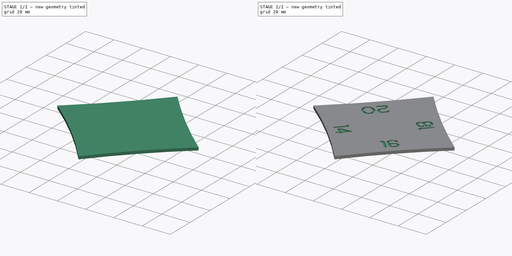
[diagram: build sequence overview — one tinted view per stage of 2, left to right]
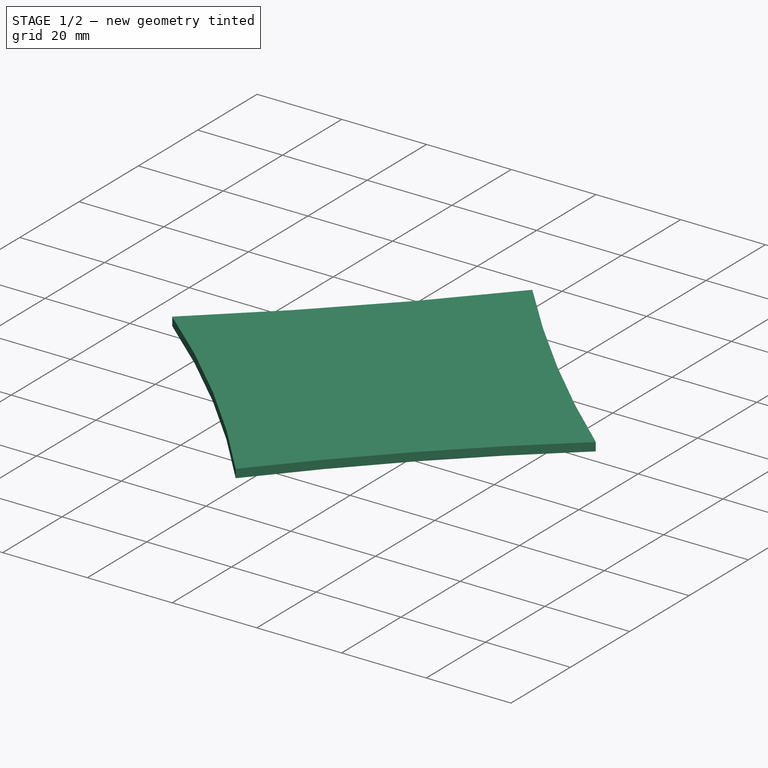
[diagram: stage 1 of 2 — iso view after this stage's code; geometry added in this stage tinted green]
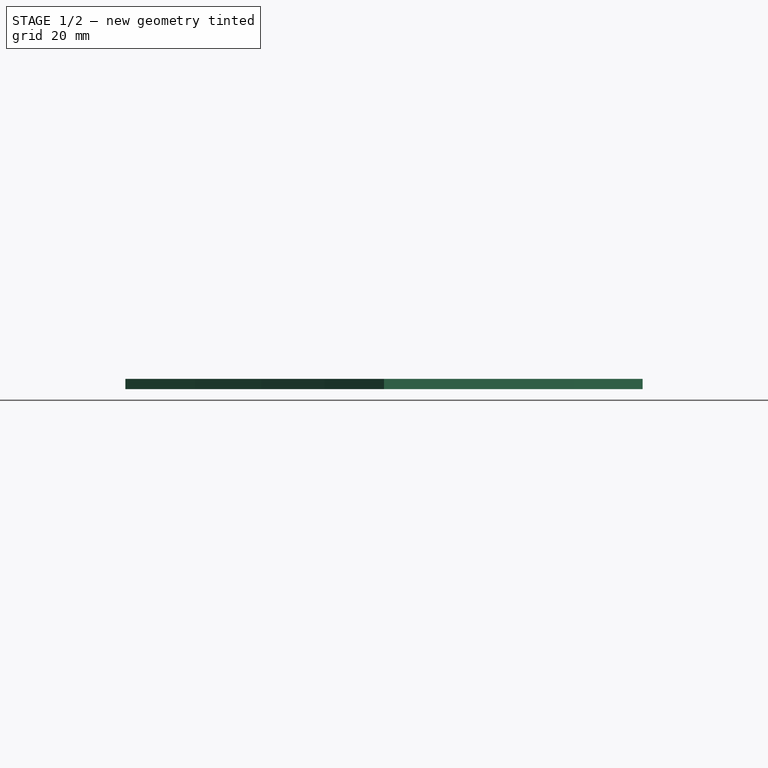
[diagram: stage 1 of 2 — front view after this stage's code; geometry added in this stage tinted green]
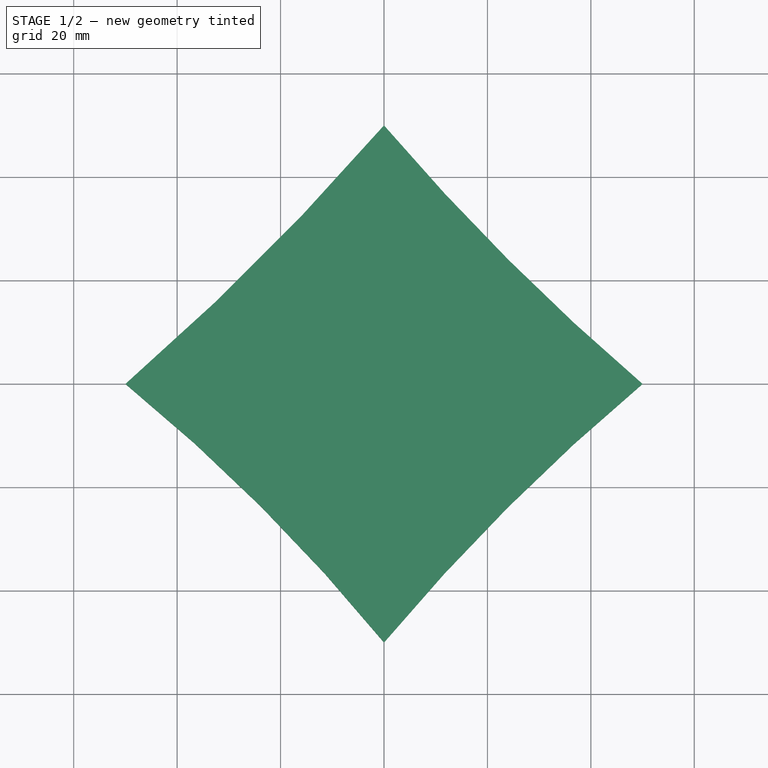
[diagram: stage 1 of 2 — top view after this stage's code; geometry added in this stage tinted green]
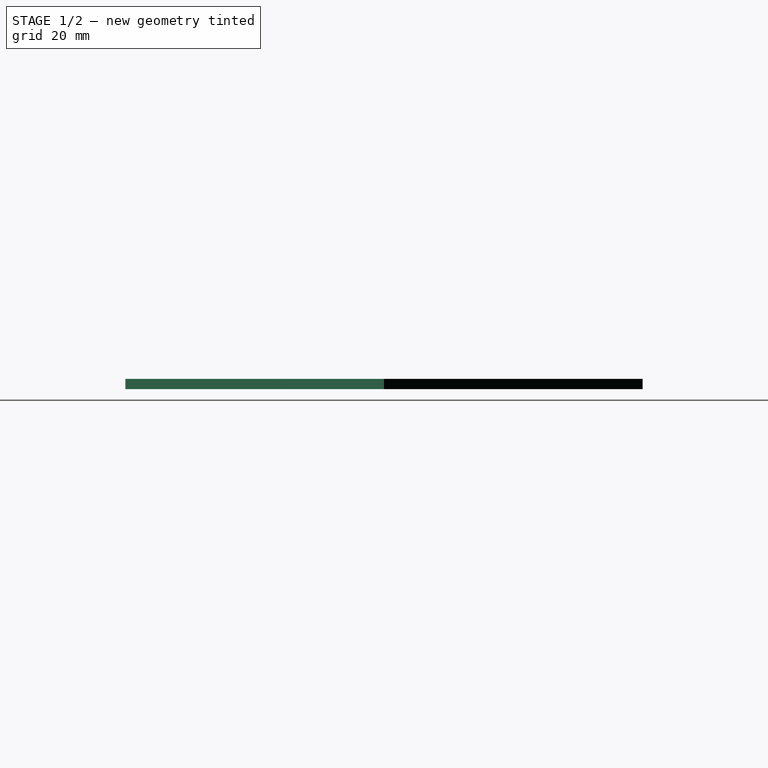
[diagram: stage 1 of 2 — right view after this stage's code; geometry added in this stage tinted green]
FCSTD DOCUMENT  (FreeCAD 2021.911R24301 +3846 (Git))
Label: neck
License: All rights reserved
LicenseURL: http://en.wikipedia.org/wiki/All_rights_reserved
objects: Part::Part2DObjectPython×4, Sketcher::SketchObject×1, PartDesign::Pad×1, PartDesign::Body×1, Part::Feature×1, Part::Cut×1
note: 11 computed .brp shape members not serialized (recipe doc carries the construction recipe); baked Part::Feature solids carry a one-line shape summary decoded from their .brp

FEATURE [Sketcher::SketchObject] Sketch
  FullyConstrained = true
  MapMode = 5
  Support = -> [XY_Plane]
  sketch-geometry (4):
    g0: ArcOfCircle CenterX=-383.339 CenterY=383.339 CenterZ=0 NormalX=0 NormalY=0 NormalZ=1 AngleXU=0 Radius=508 StartAngle=5.42813 EndAngle=5.56744
    g1: ArcOfCircle CenterX=347.321 CenterY=347.321 CenterZ=0 NormalX=0 NormalY=0 NormalZ=1 AngleXU=0 Radius=457.2 StartAngle=3.84958 EndAngle=4.0044
    g2: ArcOfCircle CenterX=311.279 CenterY=-311.279 CenterZ=0 NormalX=0 NormalY=0 NormalZ=1 AngleXU=0 Radius=406.4 StartAngle=2.26909 EndAngle=2.4433
    g3: ArcOfCircle CenterX=-275.201 CenterY=-275.201 CenterZ=0 NormalX=0 NormalY=0 NormalZ=1 AngleXU=0 Radius=355.6 StartAngle=0.685809 EndAngle=0.884987
  constraints (14):
    c: Coincident(g1,g0)
    c: Coincident(g2,g1)
    c: Coincident(g3,g0)
    c: Coincident(g3,g2)
    c: Radius(g3) = 355.6
    c: Radius(g2) = 406.4
    c: Radius(g1) = 457.2
    c: Radius(g0) = 508
    c: Symmetric(g0,g1,g-1)
    c: Symmetric(g2,g0,g-1)
    c: Vertical(g2,g0)
    c: Horizontal(g1,g0)
    c: DistanceX(g0,g1) = 100
    c: DistanceY(g2,g0) = 100
FEATURE [PartDesign::Pad] Pad
  ClaimChildren = false
  Direction = (1,1,1)
  Fit = 0
  FitJoin = 0
  InnerFit = 0
  InnerFitJoin = 0
  InnerTaperAngle = 0
  InnerTaperAngleRev = 0
  Length = 2
  Length2 = 100
  Linearize = true
  NewSolid = false
  Profile = -> Sketch
  Refine = true
  Suppress = false
  Type = 0
  _ProfileBasedVersion = 1
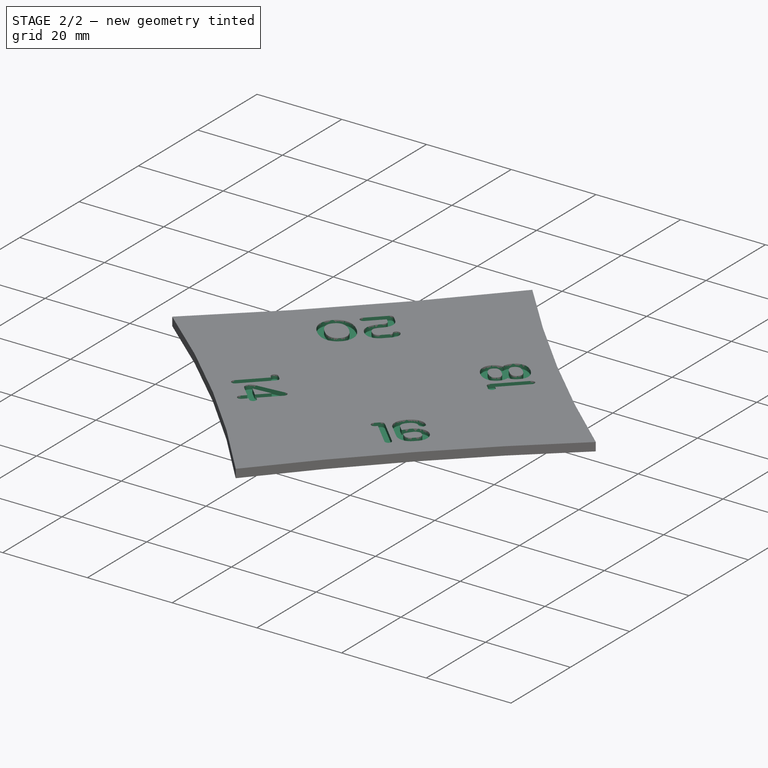
[diagram: stage 2 of 2 — iso view after this stage's code; geometry added in this stage tinted green]
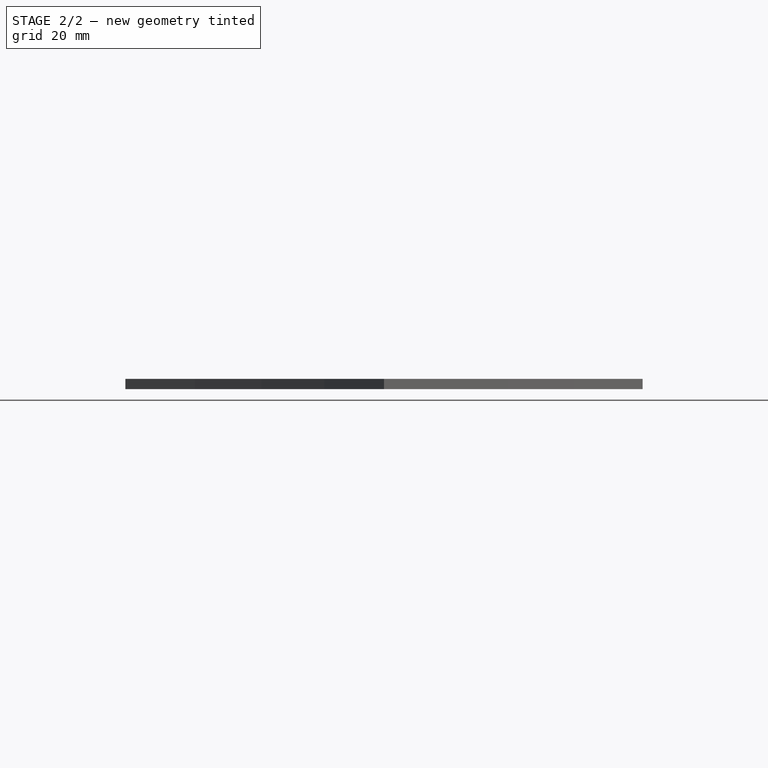
[diagram: stage 2 of 2 — front view after this stage's code; geometry added in this stage tinted green]
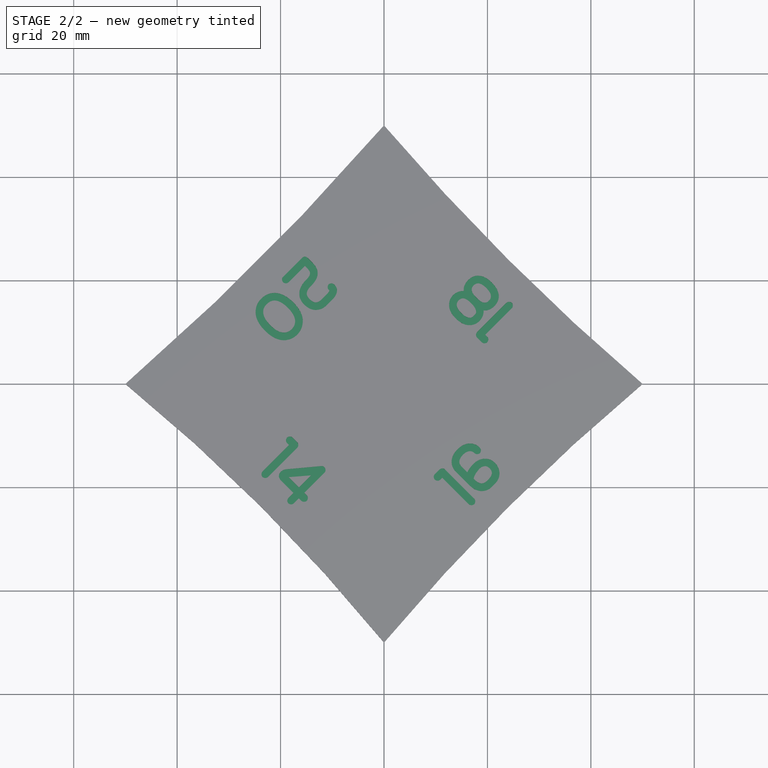
[diagram: stage 2 of 2 — top view after this stage's code; geometry added in this stage tinted green]
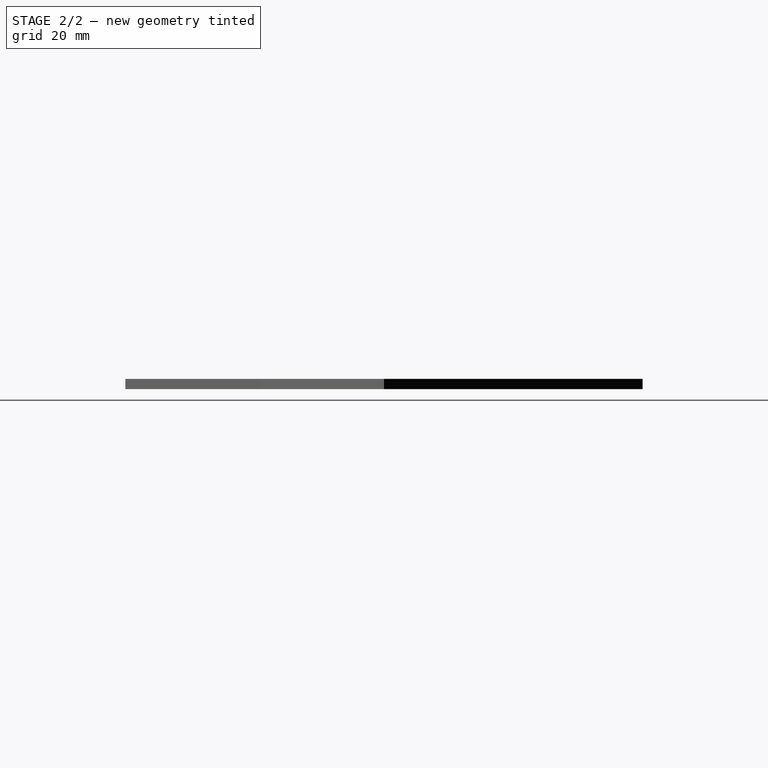
[diagram: stage 2 of 2 — right view after this stage's code; geometry added in this stage tinted green]
FEATURE [PartDesign::Body] Body
  AutoGroupSolids = false
  ExportMode = 0
  Group = -> [Sketch,Pad]
  Origin = -> Origin
  Tip = -> Pad
  _ExportChildren = -> [Pad]
  _GroupVersion = 1
FEATURE [Part::Part2DObjectPython] ShapeString  # Draft 2D object (typed FeaturePython)
  FontFile = <path> neck curve template/Ubuntu-Title.ttf
  Placement = pos=(-24.89,-16.66,2) rot=(0,0,1;-0.785398rad)
  Size = 5
  String = 14
  Tracking = 0
FEATURE [Part::Part2DObjectPython] ShapeString001  # Draft 2D object (typed FeaturePython)
  FontFile = <path> neck curve template/Ubuntu-Title.ttf
  Placement = pos=(16.11,-24.66,2) rot=(0,0,1;0.785398rad)
  Size = 5
  String = 16
  Tracking = 0
FEATURE [Part::Part2DObjectPython] ShapeString002  # Draft 2D object (typed FeaturePython)
  FontFile = <path> neck curve template/Ubuntu-Title.ttf
  Placement = pos=(26.11,14.34,2) rot=(0,0,1;2.35619rad)
  Size = 5
  String = 18
  Tracking = 0
FEATURE [Part::Part2DObjectPython] ShapeString003  # Draft 2D object (typed FeaturePython)
  FontFile = <path> neck curve template/Ubuntu-Title.ttf
  Placement = pos=(-14.89,25.34,2) rot=(0,0,1;-2.35619rad)
  Size = 5
  String = 20
  Tracking = 0
FEATURE [Part::Feature] Projection_Object  label="Projection Object"
  Placement = pos=(0,0,-1) rot=(0,0,1;0rad)
  shape: bbox 49.74 x 48.08 x 1 mm, 199 faces, 8 solids (baked)
FEATURE [Part::Cut] Cut
  Base = -> Body
  Refine = true
  Tool = -> Projection_Object
note: 4 file-system paths scrubbed to <path> (originals preserved in the JSON sidecar)
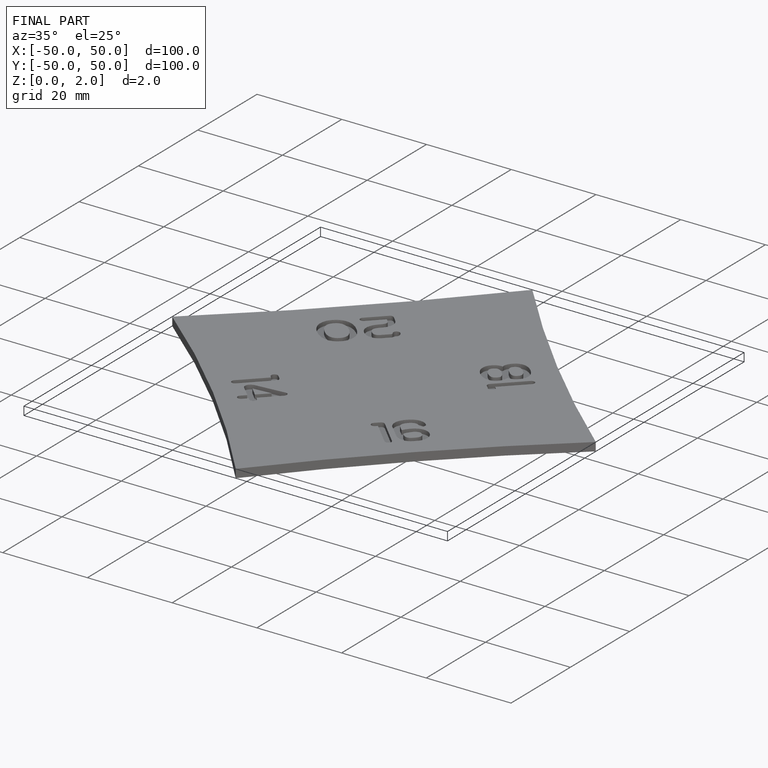
[diagram: finished part — iso view with bounding-box wireframe]
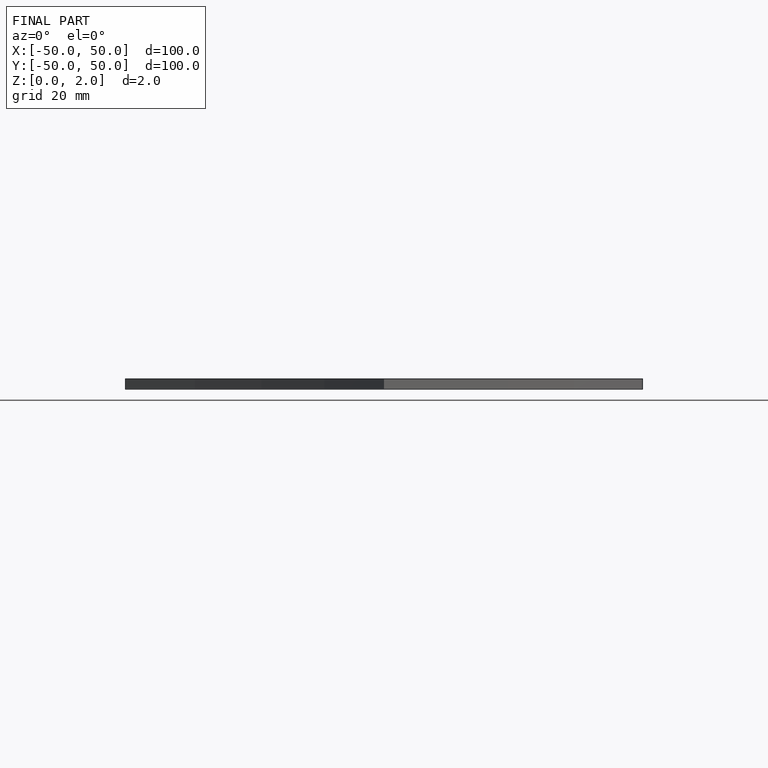
[diagram: finished part — front view with bounding-box wireframe]
